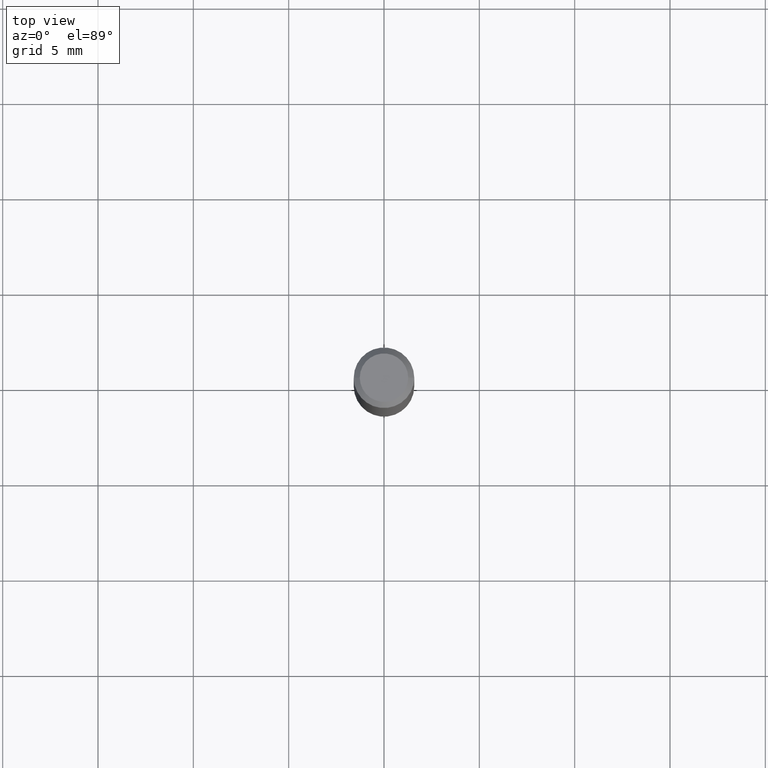
[diagram: clean part render]
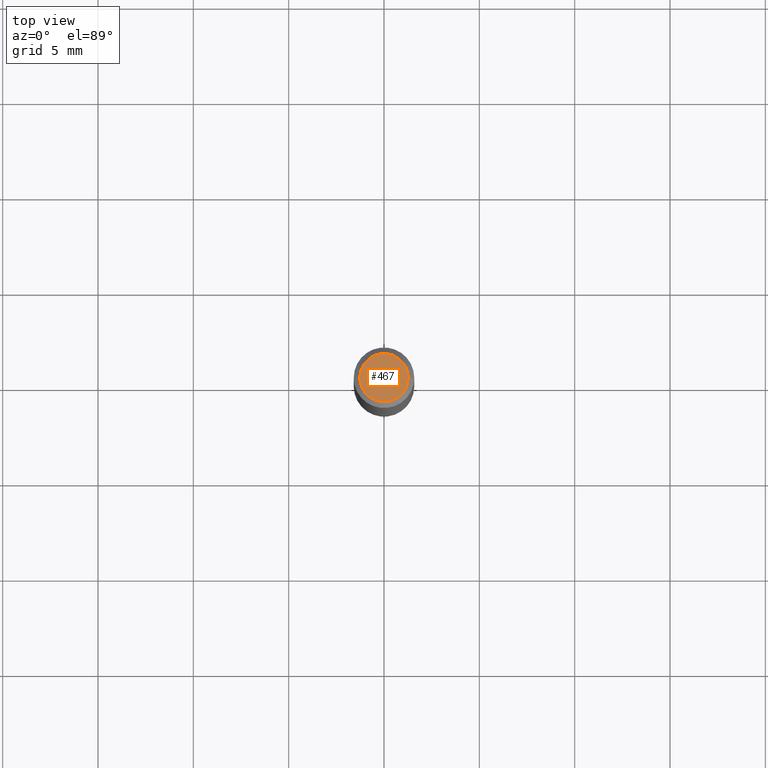
[diagram: same view with one face highlighted and labeled with its STEP entity id]
A machine part, top view. The second image highlights one B-rep face of the part: STEP entity #467.
In plain terms, the highlighted planar face has unit normal (0, -0, -1).
Its self-contained STEP definition (entity closure, byte-faithful):
#34 = DIRECTION ( 'NONE',  ( 1.000000000000000000, -6.982962677686265922E-15, 4.875957971899673662E-29 ) ) ;
#40 = CARTESIAN_POINT ( 'NONE',  ( 1.946643104841063088E-47, -2.779290439833033990E-33, -7.960204194457798443E-19 ) ) ;
#71 = DIRECTION ( 'NONE',  ( 2.438088387897960049E-29, -3.491481338843145188E-15, -1.000000000000000000 ) ) ;
#111 = PLANE ( 'NONE',  #264 ) ;
#164 = EDGE_CURVE ( 'NONE', #248, #475, #407, .T. ) ;
#171 = ORIENTED_EDGE ( 'NONE', *, *, #164, .T. ) ;
#193 = CARTESIAN_POINT ( 'NONE',  ( -0.04999999999999999584, 3.709698922520826725E-16, -1.592040838894077649E-18 ) ) ;
#194 = CARTESIAN_POINT ( 'NONE',  ( 0.04999999999999999584, -4.077247707424184705E-16, -1.592040838888913461E-18 ) ) ;
#195 = AXIS2_PLACEMENT_3D ( 'NONE', #271, #381, #196 ) ;
#196 = DIRECTION ( 'NONE',  ( 1.000000000000000000, -6.982962677686265922E-15, 4.875957971899673662E-29 ) ) ;
#211 = CARTESIAN_POINT ( 'NONE',  ( 3.893286209682126177E-47, -5.558580879666067980E-33, -1.592040838891559689E-18 ) ) ;
#226 = CIRCLE ( 'NONE', #379, 0.04999999999999999584 ) ;
#248 = VERTEX_POINT ( 'NONE', #194 ) ;
#264 = AXIS2_PLACEMENT_3D ( 'NONE', #40, #71, #305 ) ;
#271 = CARTESIAN_POINT ( 'NONE',  ( 3.893286209682126177E-47, -5.558580879666067980E-33, -1.592040838891559689E-18 ) ) ;
#305 = DIRECTION ( 'NONE',  ( -1.000000000000000000, 6.982962677686265922E-15, -4.876176775795935793E-29 ) ) ;
#356 = DIRECTION ( 'NONE',  ( -2.445468806185136597E-29, 3.491481338843145583E-15, 1.000000000000000000 ) ) ;
#379 = AXIS2_PLACEMENT_3D ( 'NONE', #211, #356, #34 ) ;
#381 = DIRECTION ( 'NONE',  ( -2.445468806185136597E-29, 3.491481338843145583E-15, 1.000000000000000000 ) ) ;
#401 = ORIENTED_EDGE ( 'NONE', *, *, #439, .T. ) ;
#407 = CIRCLE ( 'NONE', #195, 0.04999999999999999584 ) ;
#439 = EDGE_CURVE ( 'NONE', #475, #248, #226, .T. ) ;
#447 = FACE_OUTER_BOUND ( 'NONE', #480, .T. ) ;
#467 = ADVANCED_FACE ( 'NONE', ( #447 ), #111, .F. ) ;
#475 = VERTEX_POINT ( 'NONE', #193 ) ;
#480 = EDGE_LOOP ( 'NONE', ( #401, #171 ) ) ;